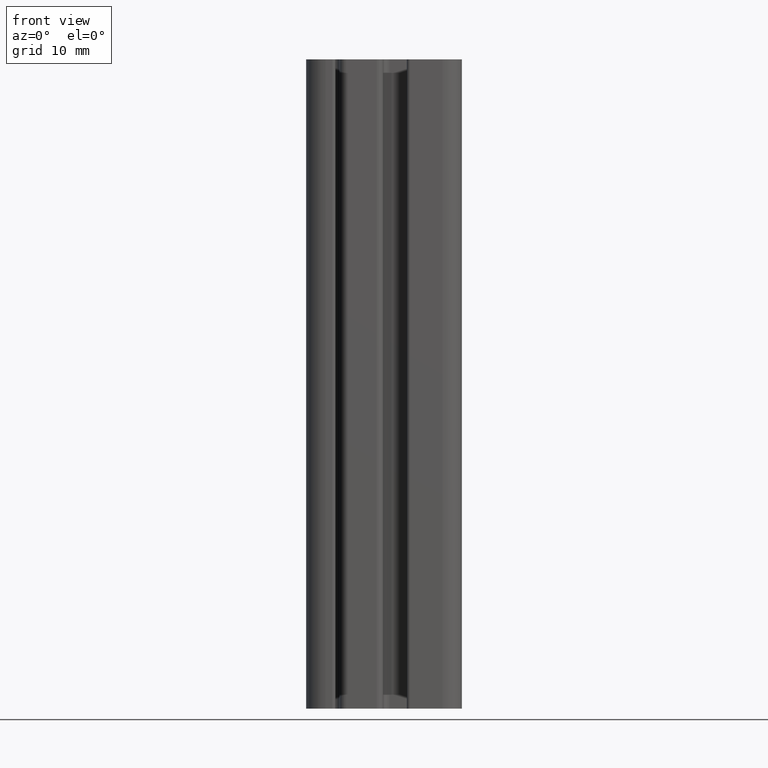
[diagram: clean part render]
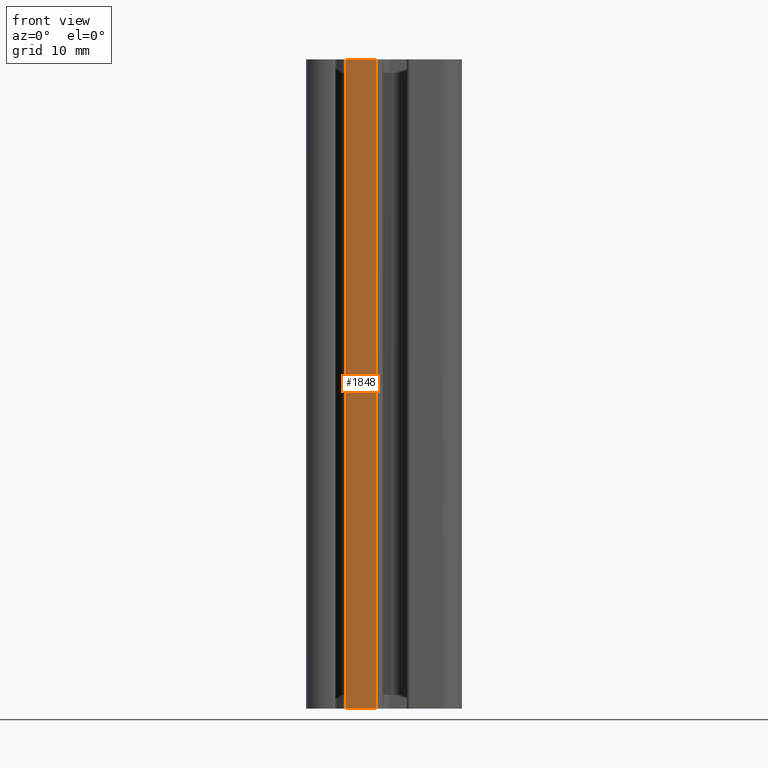
[diagram: same view with one face highlighted and labeled with its STEP entity id]
A machine part, front view. The second image highlights one B-rep face of the part: STEP entity #1848.
In plain terms, the highlighted planar face has unit normal (-0, -1, 0).
Its self-contained STEP definition (entity closure, byte-faithful):
#54=PLANE('',#2020);
#140=FACE_OUTER_BOUND('',#234,.T.);
#234=EDGE_LOOP('',(#1475,#1476,#1477,#1478));
#404=LINE('',#3066,#588);
#405=LINE('',#3069,#589);
#406=LINE('',#3071,#590);
#407=LINE('',#3072,#591);
#588=VECTOR('',#2508,100.);
#589=VECTOR('',#2511,4.70000000000004);
#590=VECTOR('',#2512,4.70000000000004);
#591=VECTOR('',#2513,100.);
#865=VERTEX_POINT('',#3062);
#866=VERTEX_POINT('',#3064);
#867=VERTEX_POINT('',#3068);
#868=VERTEX_POINT('',#3070);
#1124=EDGE_CURVE('',#865,#866,#404,.T.);
#1125=EDGE_CURVE('',#865,#867,#405,.T.);
#1126=EDGE_CURVE('',#868,#866,#406,.T.);
#1127=EDGE_CURVE('',#867,#868,#407,.T.);
#1475=ORIENTED_EDGE('',*,*,#1125,.F.);
#1476=ORIENTED_EDGE('',*,*,#1124,.T.);
#1477=ORIENTED_EDGE('',*,*,#1126,.F.);
#1478=ORIENTED_EDGE('',*,*,#1127,.F.);
#1848=ADVANCED_FACE('',(#140),#54,.T.);
#2020=AXIS2_PLACEMENT_3D('',#3067,#2509,#2510);
#2508=DIRECTION('',(0.,0.,1.));
#2509=DIRECTION('center_axis',(-4.72435329627722E-16,-1.,0.));
#2510=DIRECTION('ref_axis',(1.,-5.32907051820075E-16,0.));
#2511=DIRECTION('',(-1.,4.72435329627722E-16,0.));
#2512=DIRECTION('',(1.,-4.72435329627722E-16,0.));
#2513=DIRECTION('',(0.,0.,1.));
#3062=CARTESIAN_POINT('',(-1.03794162705141,-13.7596426863348,0.));
#3064=CARTESIAN_POINT('',(-1.03794162705141,-13.7596426863348,100.));
#3066=CARTESIAN_POINT('',(-1.03794162705141,-13.7596426863348,0.));
#3067=CARTESIAN_POINT('Origin',(-5.73794162705145,-13.7596426863348,0.));
#3068=CARTESIAN_POINT('',(-5.73794162705145,-13.7596426863348,0.));
#3069=CARTESIAN_POINT('',(-1.03794162705141,-13.7596426863348,0.));
#3070=CARTESIAN_POINT('',(-5.73794162705145,-13.7596426863348,100.));
#3071=CARTESIAN_POINT('',(-1.03794162705141,-13.7596426863348,100.));
#3072=CARTESIAN_POINT('',(-5.73794162705145,-13.7596426863348,0.));